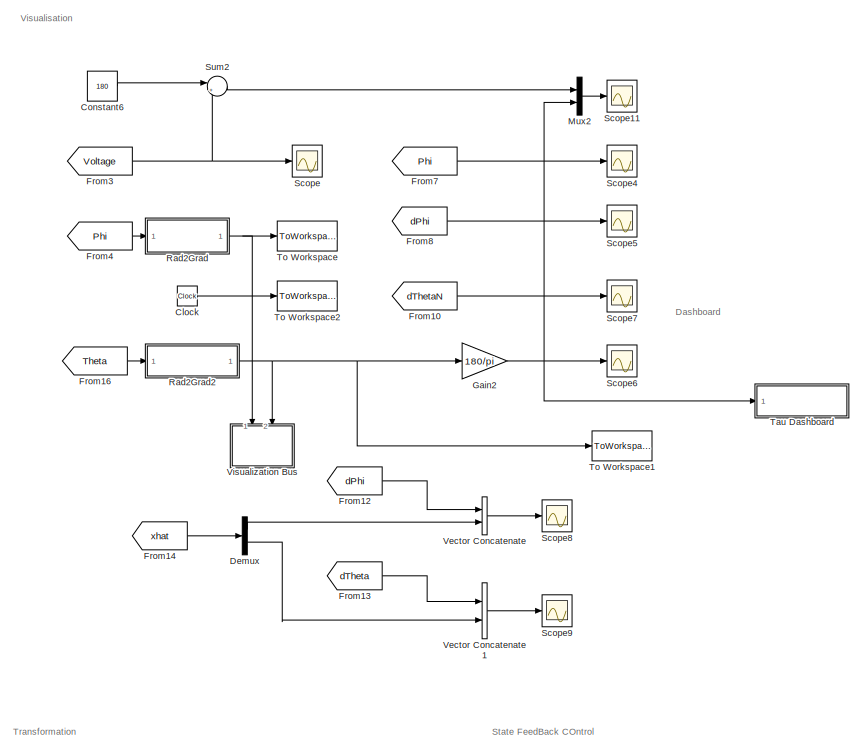
[diagram: root canvas - part 1/4, top center region]
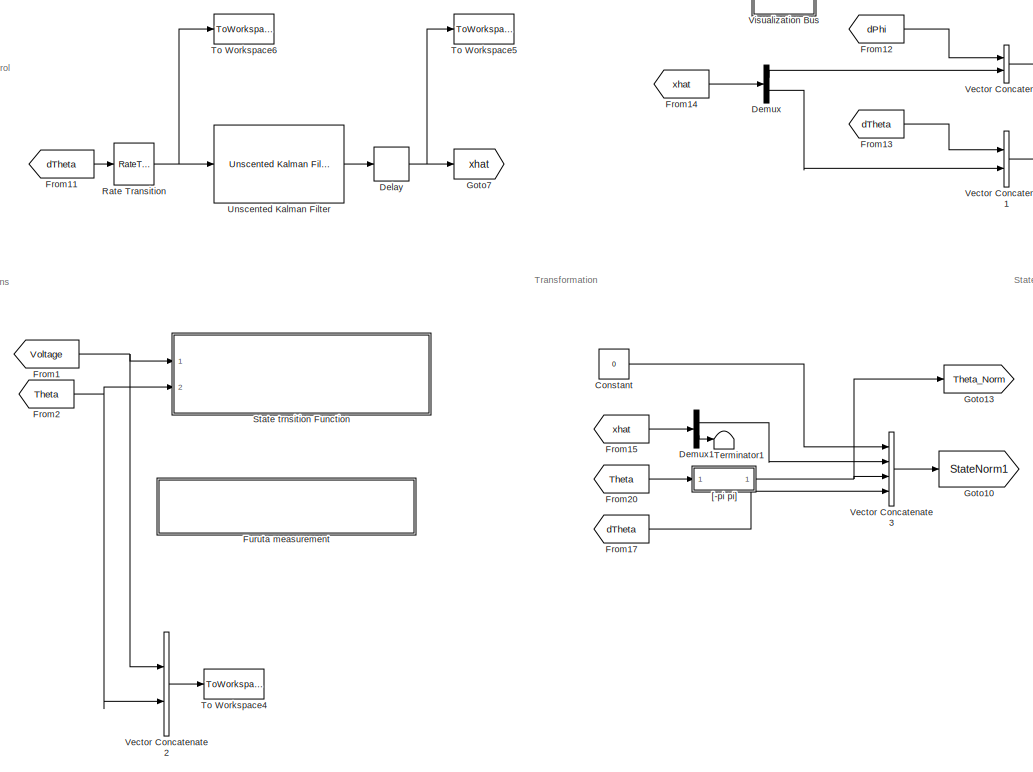
[diagram: root canvas - part 2/4, central region]
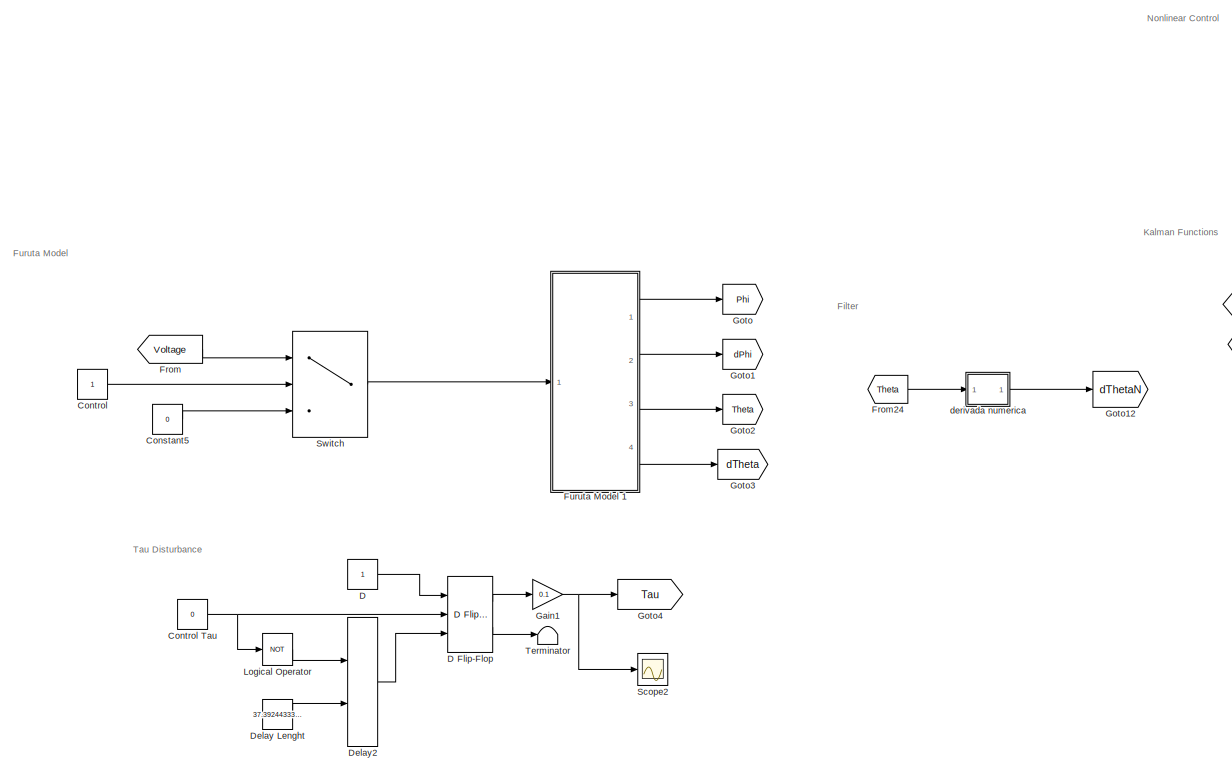
[diagram: root canvas - part 3/4, bottom left region]
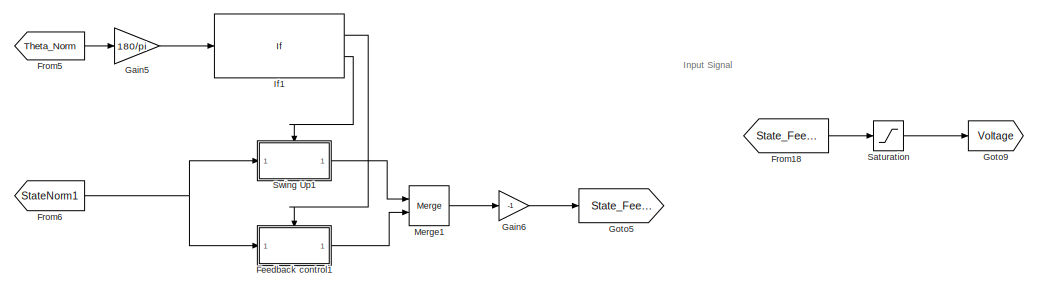
[diagram: root canvas - part 4/4, bottom right region]
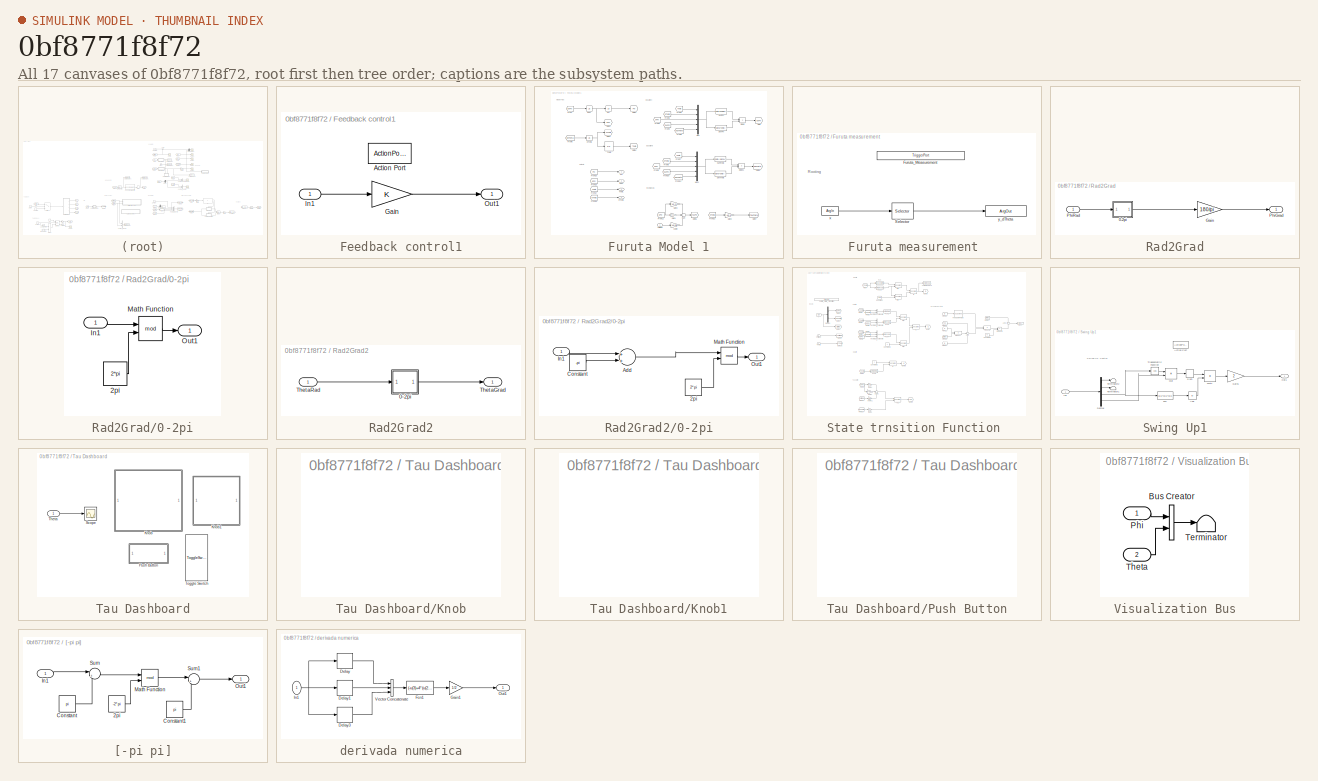
[diagram: thumbnail index - all 17 canvases of the model, root first then tree order]
MODEL slx_0bf8771f8f72
KIND model
CONFIG AbsTol = auto
CONFIG EnableMultiTasking = off
CONFIG FixedStep = Ts
CONFIG MaxStep = auto
CONFIG MinStep = auto
CONFIG PreLoadFcn = %myBusDef
CONFIG RelTol = 1e-3
CONFIG SampleTimeConstraint = Unconstrained
CONFIG Solver = FixedStepAuto
CONFIG SolverName = FixedStepAuto
CONFIG StartFcn = % Full path to the block\n%blk = 'Furuta_Control/Bus Creator';\n\n% Attach the event listener\n%h = add_exec_event_listener(blk, ...\n%         'PostOutputs', @displayBusdata);
CONFIG StartTime = 0.0
CONFIG StopTime = 30
BLOCK [Clock] Clock
BLOCK [Constant] Constant
  Value = 0
BLOCK [Constant] Constant5
  Value = 0
BLOCK [Constant] Constant6
  Value = 180
BLOCK [Constant] Control
BLOCK [Constant] Control Tau 
  Commented = on
  OutDataTypeStr = boolean
  Value = 0
BLOCK [Constant] D
  Commented = on
  OutDataTypeStr = boolean
BLOCK [Reference] D Flip-Flop  REF=simulink_extras/Flip Flops/D Flip-Flop
  Commented = on
  Ports = [3, 2]
  SourceBlock = simulink_extras/Flip Flops/D Flip-Flop
  SourceProductBaseCode = SL
  SourceProductName = Simulink
  SourceType = DFlipFlop
BLOCK [Delay] Delay
  Commented = through
  DelayLength = 1
  InitialCondition = 0
  InputPortMap = u0
  Ports = [1, 1]
BLOCK [Constant] Delay Lenght
  Commented = on
  Value = 37.39244333903
BLOCK [Delay] Delay2
  Commented = on
  DelayLengthSource = Input port
  InputPortMap = u0,p1
  Ports = [2, 1]
BLOCK [Demux] Demux
  DisplayOption = bar
  Outputs = 2
  Ports = [1, 2]
BLOCK [Demux] Demux1
  DisplayOption = bar
  Outputs = 2
  Ports = [1, 2]
BLOCK [SubSystem] Feedback control1
  Ports = [1, 1, 0, 0, 0, 0, 0, 1]
  RequestExecContextInheritance = off
  TreatAsAtomicUnit = on
BLOCK [ActionPort] Feedback control1/Action Port
  ActionType = then
BLOCK [Gain] Feedback control1/Gain
  Gain = K
  Multiplication = Matrix(K*u)
  OutDataTypeStr = double
  ParamDataTypeStr = double
  SaturateOnIntegerOverflow = off
BLOCK [Inport] Feedback control1/In1
  IconDisplay = Port number
BLOCK [Outport] Feedback control1/Out1
  IconDisplay = Port number
BLOCK [From] From
  GotoTag = Voltage
BLOCK [From] From1
  GotoTag = Voltage
BLOCK [From] From10
  GotoTag = dThetaN
BLOCK [From] From11
  GotoTag = dTheta
BLOCK [From] From12
  GotoTag = dPhi
BLOCK [From] From13
  GotoTag = dTheta
BLOCK [From] From14
  GotoTag = xhat
BLOCK [From] From15
  GotoTag = xhat
BLOCK [From] From16
  GotoTag = Theta
BLOCK [From] From17
  GotoTag = dTheta
BLOCK [From] From18
  GotoTag = State_FeedBack
BLOCK [From] From2
  GotoTag = Theta
BLOCK [From] From20
  GotoTag = Theta
BLOCK [From] From24
  GotoTag = Theta
BLOCK [From] From3
  GotoTag = Voltage
BLOCK [From] From4
  GotoTag = Phi
BLOCK [From] From5
  GotoTag = Theta_Norm
BLOCK [From] From6
  GotoTag = StateNorm1
BLOCK [From] From7
  GotoTag = Phi
BLOCK [From] From8
  GotoTag = dPhi
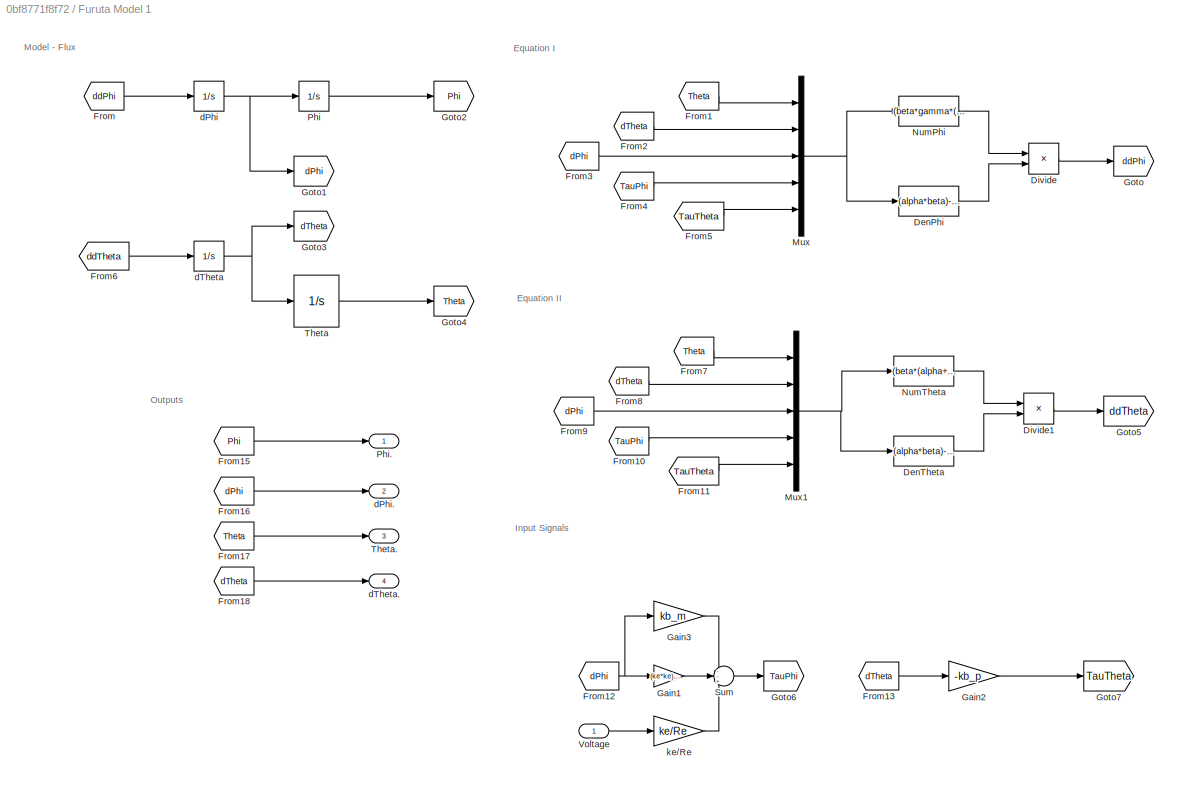
BLOCK [SubSystem] Furuta Model 1
  Ports = [1, 4]
  RequestExecContextInheritance = off
BLOCK [Fcn] Furuta Model 1/DenPhi
  Expr = (alpha*beta)-(gamma*gamma)+((beta*beta+gamma*gamma)*sin(u(1))*sin(u(1)))
BLOCK [Fcn] Furuta Model 1/DenTheta
  Expr = (alpha*beta)-(gamma*gamma)+((beta*beta+gamma*gamma)*sin(u(1))*sin(u(1)))
BLOCK [Product] Furuta Model 1/Divide
  InputSameDT = off
  Inputs = */
  OutDataTypeStr = Inherit: Inherit via internal rule
  Ports = [2, 1]
  RndMeth = Floor
  SaturateOnIntegerOverflow = off
BLOCK [Product] Furuta Model 1/Divide1
  InputSameDT = off
  Inputs = */
  OutDataTypeStr = Inherit: Inherit via internal rule
  Ports = [2, 1]
  RndMeth = Floor
  SaturateOnIntegerOverflow = off
BLOCK [From] Furuta Model 1/From
  GotoTag = ddPhi
BLOCK [From] Furuta Model 1/From1
  GotoTag = Theta
BLOCK [From] Furuta Model 1/From10
  GotoTag = TauPhi
BLOCK [From] Furuta Model 1/From11
  GotoTag = TauTheta
BLOCK [From] Furuta Model 1/From12
  GotoTag = dPhi
BLOCK [From] Furuta Model 1/From13
  GotoTag = dTheta
BLOCK [From] Furuta Model 1/From15
  GotoTag = Phi
BLOCK [From] Furuta Model 1/From16
  GotoTag = dPhi
BLOCK [From] Furuta Model 1/From17
  GotoTag = Theta
BLOCK [From] Furuta Model 1/From18
  GotoTag = dTheta
BLOCK [From] Furuta Model 1/From2
  GotoTag = dTheta
BLOCK [From] Furuta Model 1/From3
  GotoTag = dPhi
BLOCK [From] Furuta Model 1/From4
  GotoTag = TauPhi
BLOCK [From] Furuta Model 1/From5
  GotoTag = TauTheta
BLOCK [From] Furuta Model 1/From6
  GotoTag = ddTheta
BLOCK [From] Furuta Model 1/From7
  GotoTag = Theta
BLOCK [From] Furuta Model 1/From8
  GotoTag = dTheta
BLOCK [From] Furuta Model 1/From9
  GotoTag = dPhi
BLOCK [Gain] Furuta Model 1/Gain1
  Gain = (ke*ke)/Re
  OutDataTypeStr = Inherit: Inherit via internal rule
  ParamDataTypeStr = Inherit: Inherit via internal rule
  SaturateOnIntegerOverflow = off
BLOCK [Gain] Furuta Model 1/Gain2
  Gain = -kb_p
  OutDataTypeStr = Inherit: Inherit via internal rule
  ParamDataTypeStr = Inherit: Inherit via internal rule
  SaturateOnIntegerOverflow = off
BLOCK [Gain] Furuta Model 1/Gain3
  Gain = kb_m
  OutDataTypeStr = Inherit: Inherit via internal rule
  ParamDataTypeStr = Inherit: Inherit via internal rule
  SaturateOnIntegerOverflow = off
BLOCK [Goto] Furuta Model 1/Goto
  GotoTag = ddPhi
BLOCK [Goto] Furuta Model 1/Goto1
  GotoTag = dPhi
BLOCK [Goto] Furuta Model 1/Goto2
  GotoTag = Phi
BLOCK [Goto] Furuta Model 1/Goto3
  GotoTag = dTheta
BLOCK [Goto] Furuta Model 1/Goto4
  GotoTag = Theta
BLOCK [Goto] Furuta Model 1/Goto5
  GotoTag = ddTheta
BLOCK [Goto] Furuta Model 1/Goto6
  GotoTag = TauPhi
BLOCK [Goto] Furuta Model 1/Goto7
  GotoTag = TauTheta
BLOCK [Mux] Furuta Model 1/Mux
  DisplayOption = bar
  Inputs = 5
  Ports = [5, 1]
BLOCK [Mux] Furuta Model 1/Mux1
  DisplayOption = bar
  Inputs = 5
  Ports = [5, 1]
BLOCK [Fcn] Furuta Model 1/NumPhi
  Expr = (beta*gamma*(sin(u(1))*sin(u(1))-1)*sin(u(1))*u(3)*u(3))-(2*beta*beta*cos(u(1))*sin(u(1))*u(3)*u(2))+(beta*gamma*sin(u(1))*u(2)*u(2))-(gamma*sigma*cos(u(1))*sin(u(1)))+(beta*u(4))-(gamma*cos(u(1))*u(5))
BLOCK [Fcn] Furuta Model 1/NumTheta
  Expr = (beta*(alpha+beta*sin(u(1))*sin(u(1)))*cos(u(1))*sin(u(1))*u(3)*u(3))+(2*beta*gamma*(1-sin(u(1))*sin(u(1)))*sin(u(1))*u(3)*u(2))-(gamma*gamma*cos(u(1))*sin(u(1))*u(2)*u(2))+(sigma*(alpha+beta*sin(u(1))*sin(u(1)))*sin(u(1)))-(gamma*cos(u(1))*u(4))+((alpha+beta*sin(u(1))*sin(u(1)))*u(5))
BLOCK [Integrator] Furuta Model 1/Phi
  Ports = [1, 1]
BLOCK [Outport] Furuta Model 1/Phi.
  IconDisplay = Port number
BLOCK [Sum] Furuta Model 1/Sum
  IconShape = round
  InputSameDT = off
  Inputs = --+
  OutDataTypeStr = Inherit: Inherit via internal rule
  Ports = [3, 1]
  SaturateOnIntegerOverflow = off
BLOCK [Integrator] Furuta Model 1/Theta
  InitialCondition = initial_state
  Ports = [1, 1]
BLOCK [Outport] Furuta Model 1/Theta.
  IconDisplay = Port number
  Port = 3
BLOCK [Inport] Furuta Model 1/Voltage 
  IconDisplay = Port number
BLOCK [Integrator] Furuta Model 1/dPhi
  Ports = [1, 1]
BLOCK [Outport] Furuta Model 1/dPhi.
  IconDisplay = Port number
  Port = 2
BLOCK [Integrator] Furuta Model 1/dTheta
  Ports = [1, 1]
BLOCK [Outport] Furuta Model 1/dTheta.
  IconDisplay = Port number
  Port = 4
BLOCK [Gain] Furuta Model 1/ke//Re 
  Gain = ke/Re
  OutDataTypeStr = Inherit: Inherit via internal rule
  ParamDataTypeStr = Inherit: Inherit via internal rule
  SaturateOnIntegerOverflow = off
BLOCK [SubSystem] Furuta measurement 
  Ports = [0, 0, 0, 1]
  RequestExecContextInheritance = off
  TreatAsAtomicUnit = on
BLOCK [TriggerPort] Furuta measurement /Furuta_Measurement
  FunctionName = Furuta_Measurement
  IsSimulinkFunction = on
  Ports = []
  StatesWhenEnabling = held
  TriggerType = function-call
  VariantControl = Variant
BLOCK [Selector] Furuta measurement /Selector
  IndexOptions = Index vector (dialog)
  Indices = 2
  InputPortWidth = 2
  OutputSizes = 1
  Ports = [1, 1]
BLOCK [ArgIn] Furuta measurement /x
  ArgumentName = x
  DisableCoverage = on
  PortDimensions = 2
BLOCK [ArgOut] Furuta measurement /y_dTheta
  ArgumentName = y_dTheta
  DisableCoverage = on
BLOCK [Gain] Gain1
  Commented = on
  Gain = 0.1
  OutDataTypeStr = Inherit: Inherit via internal rule
  ParamDataTypeStr = Inherit: Inherit via internal rule
  SaturateOnIntegerOverflow = off
BLOCK [Gain] Gain2
  Gain = 180/pi
  OutDataTypeStr = Inherit: Inherit via internal rule
  ParamDataTypeStr = Inherit: Inherit via internal rule
  SaturateOnIntegerOverflow = off
BLOCK [Gain] Gain5
  Gain = 180/pi
  OutDataTypeStr = Inherit: Inherit via internal rule
  ParamDataTypeStr = Inherit: Inherit via internal rule
  SaturateOnIntegerOverflow = off
BLOCK [Gain] Gain6
  Gain = -1
  OutDataTypeStr = Inherit: Inherit via internal rule
  ParamDataTypeStr = Inherit: Inherit via internal rule
  SaturateOnIntegerOverflow = off
BLOCK [Goto] Goto
  GotoTag = Phi
BLOCK [Goto] Goto1
  GotoTag = dPhi
BLOCK [Goto] Goto10
  GotoTag = StateNorm1
BLOCK [Goto] Goto12
  GotoTag = dThetaN
BLOCK [Goto] Goto13
  GotoTag = Theta_Norm
BLOCK [Goto] Goto2
  GotoTag = Theta
BLOCK [Goto] Goto3
  GotoTag = dTheta
BLOCK [Goto] Goto4
  Commented = on
  GotoTag = Tau
BLOCK [Goto] Goto5
  GotoTag = State_FeedBack
BLOCK [Goto] Goto7
  GotoTag = xhat
BLOCK [Goto] Goto9
  GotoTag = Voltage
BLOCK [If] If1
  IfExpression = (u1 < 30) & (u1 > -30 )
  Ports = [1, 2]
BLOCK [Logic] Logical Operator
  AllPortsSameDT = off
  Commented = on
  Operator = NOT
  OutDataTypeStr = boolean
  Ports = [1, 1]
BLOCK [Merge] Merge1
  Ports = [2, 1]
BLOCK [Mux] Mux2
  DisplayOption = bar
  Inputs = 2
  Ports = [2, 1]
BLOCK [SubSystem] Rad2Grad
  Ports = [1, 1]
  RequestExecContextInheritance = off
BLOCK [SubSystem] Rad2Grad/0-2pi
  Ports = [1, 1]
  RequestExecContextInheritance = off
BLOCK [Constant] Rad2Grad/0-2pi/2pi
  Value = 2*pi
BLOCK [Inport] Rad2Grad/0-2pi/In1
  IconDisplay = Port number
BLOCK [Math] Rad2Grad/0-2pi/Math Function
  Operator = mod
  Ports = [2, 1]
BLOCK [Outport] Rad2Grad/0-2pi/Out1
  IconDisplay = Port number
BLOCK [Gain] Rad2Grad/Gain
  Commented = through
  Gain = 180/pi
  OutDataTypeStr = Inherit: Inherit via internal rule
  ParamDataTypeStr = Inherit: Inherit via internal rule
  SaturateOnIntegerOverflow = off
BLOCK [Outport] Rad2Grad/PhiGrad
  IconDisplay = Port number
BLOCK [Inport] Rad2Grad/PhiRad
  IconDisplay = Port number
BLOCK [SubSystem] Rad2Grad2
  Ports = [1, 1]
  RequestExecContextInheritance = off
BLOCK [SubSystem] Rad2Grad2/0-2pi
  Ports = [1, 1]
  RequestExecContextInheritance = off
BLOCK [Constant] Rad2Grad2/0-2pi/2pi
  Value = 2*pi
BLOCK [Sum] Rad2Grad2/0-2pi/Add
  InputSameDT = off
  OutDataTypeStr = Inherit: Inherit via internal rule
  Ports = [2, 1]
  SaturateOnIntegerOverflow = off
BLOCK [Constant] Rad2Grad2/0-2pi/Constant
  Value = -pi
BLOCK [Inport] Rad2Grad2/0-2pi/In1
  IconDisplay = Port number
BLOCK [Math] Rad2Grad2/0-2pi/Math Function
  Operator = mod
  Ports = [2, 1]
BLOCK [Outport] Rad2Grad2/0-2pi/Out1
  IconDisplay = Port number
BLOCK [Outport] Rad2Grad2/ThetaGrad
  IconDisplay = Port number
BLOCK [Inport] Rad2Grad2/ThetaRad
  IconDisplay = Port number
BLOCK [RateTransition] Rate Transition
  OutPortSampleTime = Ts
  OutPortSampleTimeOpt = Inherit
BLOCK [Saturate] Saturation
  InputPortMap = u0
  LowerLimit = -6
  Ports = [1, 1]
  UpperLimit = 6
BLOCK [Scope] Scope
  Floating = off
  NumInputPorts = 1
  Ports = [1]
  ScopeSpecificationString = Simulink.scopes.TimeScopeBlockCfg('CurrentConfiguration', extmgr.ConfigurationSet(extmgr.Configuration('Core','General UI',true),extmgr.Configuration('Core','Source UI',true),extmgr.Configuration('Sources','WiredSimulink',true),extmgr.Configuration('Visuals','Time Domain',true,'SerializedDisplays',{struct('MinYLimReal','-7.47008','MaxYLimReal','14.16334','YLabelReal','','MinYLimMag','0.00000','Max...<+1378ch>
BLOCK [Scope] Scope11
  Floating = off
  NumInputPorts = 1
  Ports = [1]
  ScopeSpecificationString = Simulink.scopes.TimeScopeBlockCfg('CurrentConfiguration', extmgr.ConfigurationSet(extmgr.Configuration('Core','General UI',true,'ShowStatusbar',false),extmgr.Configuration('Core','Source UI',true),extmgr.Configuration('Sources','WiredSimulink',true,'DataLoggingVariableName','ScopeData1'),extmgr.Configuration('Visuals','Time Domain',true,'SerializedDisplays',{struct('MinYLimReal','-44.99804','MaxYL...<+1501ch>
BLOCK [Scope] Scope2
  Commented = on
  Floating = off
  NumInputPorts = 1
  Ports = [1]
  ScopeSpecificationString = Simulink.scopes.TimeScopeBlockCfg('CurrentConfiguration', extmgr.ConfigurationSet(extmgr.Configuration('Core','General UI',true),extmgr.Configuration('Core','Source UI',true),extmgr.Configuration('Sources','WiredSimulink',true,'DataLoggingVariableName','ScopeData1'),extmgr.Configuration('Visuals','Time Domain',true,'SerializedDisplays',{struct('MinYLimReal','-1.00000','MaxYLimReal','1.00000','YLab...<+1392ch>
BLOCK [Scope] Scope4
  Floating = off
  NumInputPorts = 1
  Ports = [1]
  ScopeSpecificationString = Simulink.scopes.TimeScopeBlockCfg('CurrentConfiguration', extmgr.ConfigurationSet(extmgr.Configuration('Core','General UI',true),extmgr.Configuration('Core','Source UI',true),extmgr.Configuration('Sources','WiredSimulink',true,'DataLoggingVariableName','ScopeData4'),extmgr.Configuration('Visuals','Time Domain',true,'SerializedDisplays',{struct('MinYLimReal','-11.50271','MaxYLimReal','103.52435','Y...<+1410ch>
BLOCK [Scope] Scope5
  Floating = off
  NumInputPorts = 1
  Ports = [1]
  ScopeSpecificationString = Simulink.scopes.TimeScopeBlockCfg('CurrentConfiguration', extmgr.ConfigurationSet(extmgr.Configuration('Core','General UI',true),extmgr.Configuration('Core','Source UI',true),extmgr.Configuration('Sources','WiredSimulink',true,'DataLoggingVariableName','ScopeData5'),extmgr.Configuration('Visuals','Time Domain',true,'SerializedDisplays',{struct('MinYLimReal','-19.74453','MaxYLimReal','17.49516','YL...<+1433ch>
BLOCK [Scope] Scope6
  Floating = off
  NumInputPorts = 1
  Ports = [1]
  ScopeSpecificationString = Simulink.scopes.TimeScopeBlockCfg('CurrentConfiguration', extmgr.ConfigurationSet(extmgr.Configuration('Core','General UI',true),extmgr.Configuration('Core','Source UI',true),extmgr.Configuration('Sources','WiredSimulink',true,'DataLoggingVariableName','ScopeData6'),extmgr.Configuration('Visuals','Time Domain',true,'SerializedDisplays',{struct('MinYLimReal','-44.99712','MaxYLimReal','404.99306','Y...<+1446ch>
BLOCK [Scope] Scope7
  Floating = off
  NumInputPorts = 1
  Ports = [1]
  ScopeSpecificationString = Simulink.scopes.TimeScopeBlockCfg('CurrentConfiguration', extmgr.ConfigurationSet(extmgr.Configuration('Core','General UI',true),extmgr.Configuration('Core','Source UI',true),extmgr.Configuration('Sources','WiredSimulink',true,'DataLoggingVariableName','ScopeData7'),extmgr.Configuration('Visuals','Time Domain',true,'SerializedDisplays',{struct('MinYLimReal','-239.37714','MaxYLimReal','558.59796','...<+1417ch>
BLOCK [Scope] Scope8
  Floating = off
  NumInputPorts = 1
  Ports = [1]
  ScopeSpecificationString = Simulink.scopes.TimeScopeBlockCfg('CurrentConfiguration', extmgr.ConfigurationSet(extmgr.Configuration('Core','General UI',true),extmgr.Configuration('Core','Source UI',true),extmgr.Configuration('Sources','WiredSimulink',true,'DataLoggingVariableName','ScopeData8'),extmgr.Configuration('Visuals','Time Domain',true,'SerializedDisplays',{struct('MinYLimReal','-21.56289','MaxYLimReal','7.77837','YLa...<+1460ch>
BLOCK [Scope] Scope9
  Floating = off
  NumInputPorts = 1
  Ports = [1]
  ScopeSpecificationString = Simulink.scopes.TimeScopeBlockCfg('CurrentConfiguration', extmgr.ConfigurationSet(extmgr.Configuration('Core','General UI',true),extmgr.Configuration('Core','Source UI',true),extmgr.Configuration('Sources','WiredSimulink',true,'DataLoggingVariableName','ScopeData9'),extmgr.Configuration('Visuals','Time Domain',true,'SerializedDisplays',{struct('MinYLimReal','-25.94545','MaxYLimReal','26.4948','YLa...<+1458ch>
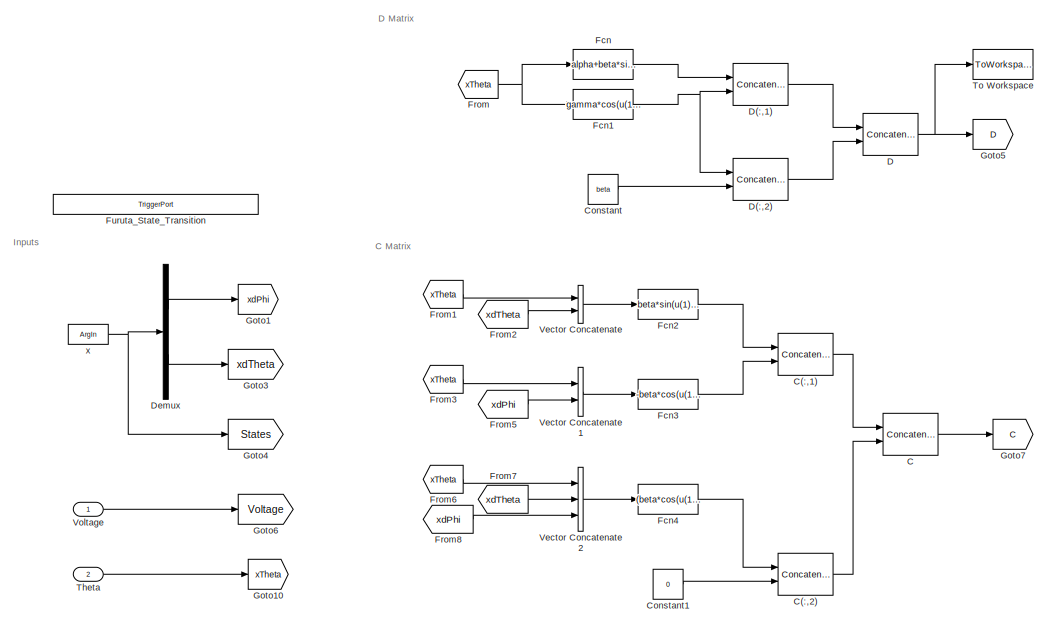
[diagram: State trnsition Function  - part 1/3, top left region]
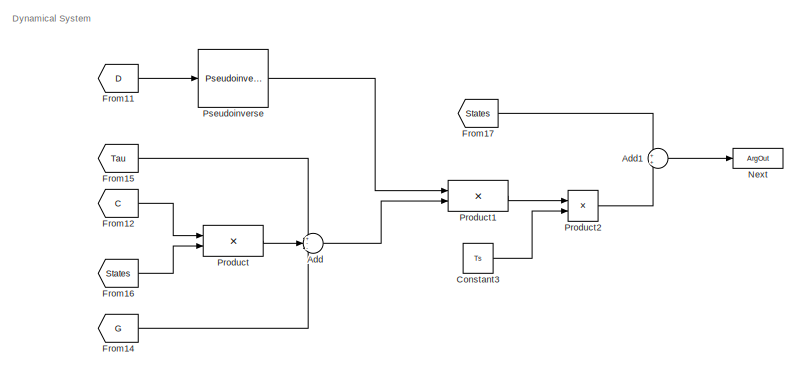
[diagram: State trnsition Function  - part 2/3, middle right region]
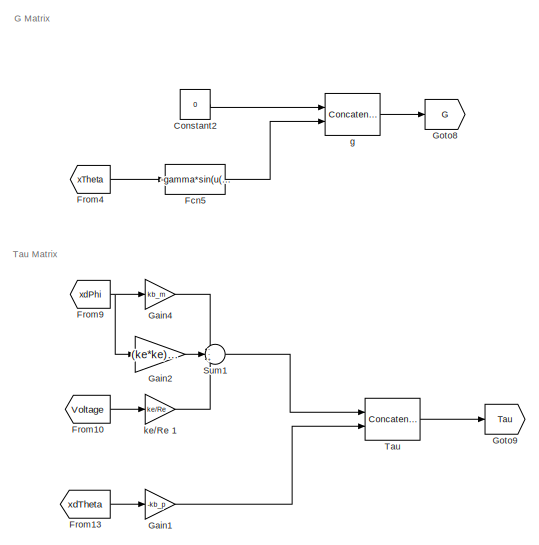
[diagram: State trnsition Function  - part 3/3, bottom center region]
BLOCK [SubSystem] State trnsition Function 
  Ports = [2, 0, 0, 1]
  RequestExecContextInheritance = off
  TreatAsAtomicUnit = on
BLOCK [Sum] State trnsition Function /Add
  IconShape = round
  InputSameDT = off
  Inputs = +--
  OutDataTypeStr = Inherit: Inherit via internal rule
  Ports = [3, 1]
  SaturateOnIntegerOverflow = off
BLOCK [Sum] State trnsition Function /Add1
  IconShape = round
  InputSameDT = off
  OutDataTypeStr = Inherit: Inherit via internal rule
  Ports = [2, 1]
  SaturateOnIntegerOverflow = off
BLOCK [Concatenate] State trnsition Function /C
  ConcatenateDimension = 2
  Mode = Multidimensional array
  Ports = [2, 1]
BLOCK [Concatenate] State trnsition Function /C(:,1)
  ConcatenateDimension = 2
  Ports = [2, 1]
BLOCK [Concatenate] State trnsition Function /C(:,2)
  ConcatenateDimension = 2
  Ports = [2, 1]
BLOCK [Constant] State trnsition Function /Constant
  Value = beta
BLOCK [Constant] State trnsition Function /Constant1
  Value = 0
BLOCK [Constant] State trnsition Function /Constant2
  Value = 0
BLOCK [Constant] State trnsition Function /Constant3
  Value = Ts
BLOCK [Concatenate] State trnsition Function /D
  ConcatenateDimension = 2
  Mode = Multidimensional array
  Ports = [2, 1]
BLOCK [Concatenate] State trnsition Function /D(:,1) 
  ConcatenateDimension = 2
  Ports = [2, 1]
BLOCK [Concatenate] State trnsition Function /D(:,2)
  ConcatenateDimension = 2
  Ports = [2, 1]
BLOCK [Demux] State trnsition Function /Demux
  DisplayOption = bar
  Outputs = 2
  Ports = [1, 2]
BLOCK [Fcn] State trnsition Function /Fcn
  Expr = alpha+beta*sin(u(1))*sin(u(1))
BLOCK [Fcn] State trnsition Function /Fcn1
  Expr = gamma*cos(u(1))
BLOCK [Fcn] State trnsition Function /Fcn2
  Expr = beta*sin(u(1))*cos(u(1))*u(2)
BLOCK [Fcn] State trnsition Function /Fcn3
  Expr = -beta*cos(u(1))*sin(u(1))*u(2)
BLOCK [Fcn] State trnsition Function /Fcn4
  Expr = (beta*cos(u(1))*sin(u(1))*u(3))-(gamma*sin(u(1))*u(2))
BLOCK [Fcn] State trnsition Function /Fcn5
  Expr = -gamma*sin(u(1))
BLOCK [From] State trnsition Function /From
  GotoTag = xTheta
BLOCK [From] State trnsition Function /From1
  GotoTag = xTheta
BLOCK [From] State trnsition Function /From10
  GotoTag = Voltage
BLOCK [From] State trnsition Function /From11
  GotoTag = D
BLOCK [From] State trnsition Function /From12
  GotoTag = C
BLOCK [From] State trnsition Function /From13
  GotoTag = xdTheta
BLOCK [From] State trnsition Function /From14
  GotoTag = G
BLOCK [From] State trnsition Function /From15
  GotoTag = Tau
BLOCK [From] State trnsition Function /From16
  GotoTag = States
BLOCK [From] State trnsition Function /From17
  GotoTag = States
BLOCK [From] State trnsition Function /From2
  GotoTag = xdTheta
BLOCK [From] State trnsition Function /From3
  GotoTag = xTheta
BLOCK [From] State trnsition Function /From4
  GotoTag = xTheta
BLOCK [From] State trnsition Function /From5
  GotoTag = xdPhi
BLOCK [From] State trnsition Function /From6
  GotoTag = xTheta
BLOCK [From] State trnsition Function /From7
  GotoTag = xdTheta
BLOCK [From] State trnsition Function /From8
  GotoTag = xdPhi
BLOCK [From] State trnsition Function /From9
  GotoTag = xdPhi
BLOCK [TriggerPort] State trnsition Function /Furuta_State_Transition
  FunctionName = Furuta_State_Transition
  IsSimulinkFunction = on
  Ports = []
  StatesWhenEnabling = held
  TriggerType = function-call
  VariantControl = Variant
BLOCK [Gain] State trnsition Function /Gain1
  Gain = -kb_p
  OutDataTypeStr = Inherit: Inherit via internal rule
  ParamDataTypeStr = Inherit: Inherit via internal rule
  SaturateOnIntegerOverflow = off
BLOCK [Gain] State trnsition Function /Gain2
  Gain = (ke*ke)/Re
  OutDataTypeStr = Inherit: Inherit via internal rule
  ParamDataTypeStr = Inherit: Inherit via internal rule
  SaturateOnIntegerOverflow = off
BLOCK [Gain] State trnsition Function /Gain4
  Gain = kb_m
  OutDataTypeStr = Inherit: Inherit via internal rule
  ParamDataTypeStr = Inherit: Inherit via internal rule
  SaturateOnIntegerOverflow = off
BLOCK [Goto] State trnsition Function /Goto1
  GotoTag = xdPhi
BLOCK [Goto] State trnsition Function /Goto10
  GotoTag = xTheta
BLOCK [Goto] State trnsition Function /Goto3
  GotoTag = xdTheta
BLOCK [Goto] State trnsition Function /Goto4
  GotoTag = States
BLOCK [Goto] State trnsition Function /Goto5
  GotoTag = D
BLOCK [Goto] State trnsition Function /Goto6
  GotoTag = Voltage
BLOCK [Goto] State trnsition Function /Goto7
  GotoTag = C
BLOCK [Goto] State trnsition Function /Goto8
  GotoTag = G
BLOCK [Goto] State trnsition Function /Goto9
  GotoTag = Tau
BLOCK [ArgOut] State trnsition Function /Next
  ArgumentName = Next
  DisableCoverage = on
  PortDimensions = 2
BLOCK [Product] State trnsition Function /Product
  InputSameDT = off
  Multiplication = Matrix(*)
  OutDataTypeStr = Inherit: Inherit via internal rule
  Ports = [2, 1]
  RndMeth = Floor
  SaturateOnIntegerOverflow = off
BLOCK [Product] State trnsition Function /Product1
  InputSameDT = off
  Multiplication = Matrix(*)
  OutDataTypeStr = Inherit: Inherit via internal rule
  Ports = [2, 1]
  RndMeth = Floor
  SaturateOnIntegerOverflow = off
BLOCK [Product] State trnsition Function /Product2
  InputSameDT = off
  OutDataTypeStr = Inherit: Inherit via internal rule
  Ports = [2, 1]
  RndMeth = Floor
  SaturateOnIntegerOverflow = off
BLOCK [Reference] State trnsition Function /Pseudoinverse  REF=dspinverses/Pseudoinverse
  Ports = [1, 1]
  SourceBlock = dspinverses/Pseudoinverse
  SourceProductBaseCode = DS
  SourceProductName = DSP System Toolbox
  SourceType = Pseudoinverse
BLOCK [Sum] State trnsition Function /Sum1
  IconShape = round
  InputSameDT = off
  Inputs = --+
  OutDataTypeStr = Inherit: Inherit via internal rule
  Ports = [3, 1]
  SaturateOnIntegerOverflow = off
BLOCK [Concatenate] State trnsition Function /Tau
  ConcatenateDimension = 2
  Ports = [2, 1]
BLOCK [Inport] State trnsition Function /Theta 
  IconDisplay = Port number
  Port = 2
BLOCK [ToWorkspace] State trnsition Function /To Workspace
  FixptAsFi = on
  MaxDataPoints = inf
  Ports = [1]
  SampleTime = -1
  Save2DSignal = 3-D array (concatenate along third dimension)
  VariableName = D
BLOCK [Concatenate] State trnsition Function /Vector Concatenate
  Ports = [2, 1]
BLOCK [Concatenate] State trnsition Function /Vector Concatenate1
  Ports = [2, 1]
BLOCK [Concatenate] State trnsition Function /Vector Concatenate2
  NumInputs = 3
  Ports = [3, 1]
BLOCK [Inport] State trnsition Function /Voltage 
  IconDisplay = Port number
BLOCK [Concatenate] State trnsition Function /g
  ConcatenateDimension = 2
  Ports = [2, 1]
BLOCK [Gain] State trnsition Function /ke//Re 1
  Gain = ke/Re
  OutDataTypeStr = Inherit: Inherit via internal rule
  ParamDataTypeStr = Inherit: Inherit via internal rule
  SaturateOnIntegerOverflow = off
BLOCK [ArgIn] State trnsition Function /x
  ArgumentName = x
  DisableCoverage = on
  LockScale = on
  PortDimensions = 2
BLOCK [Sum] Sum2
  IconShape = round
  InputSameDT = off
  Inputs = |++
  OutDataTypeStr = Inherit: Inherit via internal rule
  Ports = [2, 1]
  SaturateOnIntegerOverflow = off
BLOCK [SubSystem] Swing Up1
  Ports = [1, 1, 0, 0, 0, 0, 0, 1]
  RequestExecContextInheritance = off
  TreatAsAtomicUnit = on
BLOCK [Abs] Swing Up1/Abs
  SaturateOnIntegerOverflow = off
BLOCK [ActionPort] Swing Up1/Action Port
  ActionType = else
BLOCK [Demux] Swing Up1/Demux
  DisplayOption = bar
  Ports = [1, 4]
BLOCK [Fcn] Swing Up1/Fcn
  Expr = u(1)*u(1)*u(1)
BLOCK [Gain] Swing Up1/Gain1
  Gain = 2
  OutDataTypeStr = Inherit: Inherit via internal rule
  ParamDataTypeStr = Inherit: Inherit via internal rule
  SaturateOnIntegerOverflow = off
BLOCK [Inport] Swing Up1/In1
  IconDisplay = Port number
BLOCK [Product] Swing Up1/Mut
  InputSameDT = off
  Inputs = **
  OutDataTypeStr = Inherit: Inherit via internal rule
  Ports = [2, 1]
  RndMeth = Floor
  SaturateOnIntegerOverflow = off
BLOCK [Product] Swing Up1/Mut1
  InputSameDT = off
  Inputs = **
  OutDataTypeStr = Inherit: Inherit via internal rule
  Ports = [2, 1]
  RndMeth = Floor
  SaturateOnIntegerOverflow = off
BLOCK [Outport] Swing Up1/Out1
  IconDisplay = Port number
  InitialOutput = 0
BLOCK [Signum] Swing Up1/Sign
BLOCK [Terminator] Swing Up1/Terminator1
BLOCK [Terminator] Swing Up1/Terminator2
BLOCK [Trigonometry] Swing Up1/Trigonometric Function
  Operator = cos
  Ports = [1, 1]
BLOCK [Switch] Switch
  Criteria = u2 > Threshold
  InputSameDT = off
  SaturateOnIntegerOverflow = off
  Threshold = 0.5
BLOCK [SubSystem] Tau Dashboard
  Commented = on
  Ports = [1]
  RequestExecContextInheritance = off
BLOCK [SubSystem] Tau Dashboard/Knob
  DialogController = hmiCreateDDGDialog
  IsWebBlock = on
  MaskHideContents = on
  Ports = []
  RequestExecContextInheritance = off
BLOCK [SubSystem] Tau Dashboard/Knob1
  DialogController = hmiCreateDDGDialog
  IsWebBlock = on
  MaskHideContents = on
  Ports = []
  RequestExecContextInheritance = off
BLOCK [SubSystem] Tau Dashboard/Push Button
  DialogController = hmiCreateDDGDialog
  IsWebBlock = on
  Ports = []
  RequestExecContextInheritance = off
BLOCK [Scope] Tau Dashboard/Scope
  Floating = off
  NumInputPorts = 1
  Ports = [1]
  ScopeSpecificationString = Simulink.scopes.TimeScopeBlockCfg('CurrentConfiguration', extmgr.ConfigurationSet(extmgr.Configuration('Core','General UI',true),extmgr.Configuration('Core','Source UI',true),extmgr.Configuration('Sources','WiredSimulink',true,'DataLoggingVariableName','ScopeData2'),extmgr.Configuration('Visuals','Time Domain',true,'SerializedDisplays',{struct('MinYLimReal','177.97188','MaxYLimReal','182.10814','Y...<+1432ch>
BLOCK [Inport] Tau Dashboard/Theta 
  IconDisplay = Port number
BLOCK [ToggleSwitchBlock] Tau Dashboard/Toggle Switch
  WebBlockId = 843
BLOCK [Terminator] Terminator
  Commented = on
BLOCK [Terminator] Terminator1
BLOCK [ToWorkspace] To Workspace
  FixptAsFi = on
  MaxDataPoints = inf
  Ports = [1]
  SampleTime = -1
  Save2DSignal = 2-D array (concatenate along first dimension)
  VariableName = simPhi
BLOCK [ToWorkspace] To Workspace1
  FixptAsFi = on
  MaxDataPoints = inf
  Ports = [1]
  SampleTime = -1
  Save2DSignal = 2-D array (concatenate along first dimension)
  VariableName = simTheta
BLOCK [ToWorkspace] To Workspace2
  FixptAsFi = on
  MaxDataPoints = inf
  Ports = [1]
  SampleTime = -1
  Save2DSignal = 2-D array (concatenate along first dimension)
  VariableName = simt
BLOCK [ToWorkspace] To Workspace4
  FixptAsFi = on
  MaxDataPoints = inf
  Ports = [1]
  SampleTime = -1
  Save2DSignal = 2-D array (concatenate along first dimension)
  VariableName = input
BLOCK [ToWorkspace] To Workspace5
  FixptAsFi = on
  MaxDataPoints = inf
  Ports = [1]
  SampleTime = -1
  Save2DSignal = 2-D array (concatenate along first dimension)
  VariableName = output
BLOCK [ToWorkspace] To Workspace6
  FixptAsFi = on
  MaxDataPoints = inf
  Ports = [1]
  SampleTime = -1
  Save2DSignal = 2-D array (concatenate along first dimension)
  VariableName = measurement
BLOCK [Reference] Unscented Kalman Filter  REF=sharedTrackingLibrary/Unscented Kalman Filter
  Ports = [1, 1]
  SourceBlock = sharedTrackingLibrary/Unscented Kalman Filter
  SourceProductBaseCode = CT
  SourceProductName = Control System Toolbox
  SourceType = Unscented Kalman Filter
BLOCK [Concatenate] Vector Concatenate
  Ports = [2, 1]
BLOCK [Concatenate] Vector Concatenate1
  Ports = [2, 1]
BLOCK [Concatenate] Vector Concatenate2
  Ports = [2, 1]
BLOCK [Concatenate] Vector Concatenate3
  NumInputs = 4
  Ports = [4, 1]
BLOCK [SubSystem] Visualization Bus
  Commented = on
  Ports = [2]
  RequestExecContextInheritance = off
BLOCK [BusCreator] Visualization Bus/Bus Creator
  DisplayOption = bar
  InheritFromInputs = on
  Inputs = 2
  NonVirtualBus = on
  OutDataTypeStr = Bus: BO
  Ports = [2, 1]
BLOCK [Inport] Visualization Bus/Phi
  IconDisplay = Port number
BLOCK [Terminator] Visualization Bus/Terminator
BLOCK [Inport] Visualization Bus/Theta
  IconDisplay = Port number
  Port = 2
BLOCK [SubSystem] [-pi pi]
  Ports = [1, 1]
  RequestExecContextInheritance = off
BLOCK [Constant] [-pi pi]/2pi
  Value = -2*pi
BLOCK [Constant] [-pi pi]/Constant
  Value = pi
BLOCK [Constant] [-pi pi]/Constant1
  Value = pi
BLOCK [Inport] [-pi pi]/In1
  IconDisplay = Port number
BLOCK [Math] [-pi pi]/Math Function
  Operator = mod
  Ports = [2, 1]
BLOCK [Outport] [-pi pi]/Out1
  IconDisplay = Port number
BLOCK [Sum] [-pi pi]/Sum
  IconShape = round
  InputSameDT = off
  Inputs = |+-
  OutDataTypeStr = Inherit: Inherit via internal rule
  Ports = [2, 1]
  SaturateOnIntegerOverflow = off
BLOCK [Sum] [-pi pi]/Sum1
  IconShape = round
  InputSameDT = off
  Inputs = |++
  OutDataTypeStr = Inherit: Inherit via internal rule
  Ports = [2, 1]
  SaturateOnIntegerOverflow = off
BLOCK [SubSystem] derivada numerica
  Ports = [1, 1]
  RequestExecContextInheritance = off
BLOCK [Delay] derivada numerica/Delay
  InitialCondition = 0
  InputPortMap = u0
  Ports = [1, 1]
  SampleTime = dtDisc
BLOCK [Delay] derivada numerica/Delay1
  DelayLength = 1
  InitialCondition = 0
  InputPortMap = u0
  Ports = [1, 1]
  SampleTime = dtDisc
BLOCK [Delay] derivada numerica/Delay3
  DelayLength = 0
  InitialCondition = 0
  InputPortMap = u0
  Ports = [1, 1]
  SampleTime = dtDisc
BLOCK [Fcn] derivada numerica/Fcn1
  Expr = (-u(3)+4*(u(2))-3*(u(1)))/dtDisc
BLOCK [Gain] derivada numerica/Gain1
  Gain = 1/2
  OutDataTypeStr = Inherit: Inherit via internal rule
  ParamDataTypeStr = Inherit: Inherit via internal rule
  SaturateOnIntegerOverflow = off
BLOCK [Inport] derivada numerica/In1
  IconDisplay = Port number
BLOCK [Outport] derivada numerica/Out1
  IconDisplay = Port number
BLOCK [Concatenate] derivada numerica/Vector Concatenate
  NumInputs = 3
  Ports = [3, 1]
ANNOTATION (root): Dashboard
ANNOTATION (root): Filter
ANNOTATION (root): Furuta Model
ANNOTATION (root): Input Signal
ANNOTATION (root): Kalman Functions
ANNOTATION (root): Nonlinear Control
ANNOTATION (root): State FeedBack COntrol
ANNOTATION (root): Tau Disturbance
ANNOTATION (root): Transformation
ANNOTATION (root): Visualisation
ANNOTATION Furuta Model 1: Equation I
ANNOTATION Furuta Model 1: Equation II
ANNOTATION Furuta Model 1: Input Signals
ANNOTATION Furuta Model 1: Model - Flux
ANNOTATION Furuta Model 1: Outputs
ANNOTATION Furuta measurement : Rooting
ANNOTATION State trnsition Function : C Matrix
ANNOTATION State trnsition Function : D Matrix
ANNOTATION State trnsition Function : Dynamical System
ANNOTATION State trnsition Function : G Matrix
ANNOTATION State trnsition Function : Inputs
ANNOTATION State trnsition Function : Tau Matrix
ANNOTATION Swing Up1: Swing-UP Control
LINE Clock:1 -> To Workspace2:1
LINE Constant5:1 -> Switch:3
LINE Constant6:1 -> Sum2:1
LINE Constant:1 -> Vector Concatenate3:1
NET Control Tau :1 -> D Flip-Flop:2, Logical Operator:1
LINE Control:1 -> Switch:2
LINE D Flip-Flop:1 -> Gain1:1
LINE D Flip-Flop:2 -> Terminator:1
LINE D:1 -> D Flip-Flop:1
LINE Delay Lenght:1 -> Delay2:2
LINE Delay2:1 -> D Flip-Flop:3
NET Delay:1 -> Goto7:1, To Workspace5:1
LINE Demux1:1 -> Vector Concatenate3:2
LINE Demux1:2 -> Terminator1:1
LINE Demux:1 -> Vector Concatenate:2
LINE Demux:2 -> Vector Concatenate1:2
LINE Feedback control1/Gain:1 -> Feedback control1/Out1:1
LINE Feedback control1/In1:1 -> Feedback control1/Gain:1
LINE Feedback control1:1 -> Merge1:2
LINE From10:1 -> Scope7:1
LINE From11:1 -> Rate Transition:1
LINE From12:1 -> Vector Concatenate:1
LINE From13:1 -> Vector Concatenate1:1
LINE From14:1 -> Demux:1
LINE From15:1 -> Demux1:1
LINE From16:1 -> Rad2Grad2:1
LINE From17:1 -> Vector Concatenate3:4
LINE From18:1 -> Saturation:1
NET From1:1 -> State trnsition Function :1, Vector Concatenate2:1
LINE From20:1 -> [-pi pi]:1
LINE From24:1 -> derivada numerica:1
NET From2:1 -> State trnsition Function :2, Vector Concatenate2:2
NET From3:1 -> Scope:1, Sum2:2
LINE From4:1 -> Rad2Grad:1
LINE From5:1 -> Gain5:1
NET From6:1 -> Feedback control1:1, Swing Up1:1
LINE From7:1 -> Scope4:1
LINE From8:1 -> Scope5:1
LINE From:1 -> Switch:1
LINE Furuta Model 1/DenPhi:1 -> Furuta Model 1/Divide:2
LINE Furuta Model 1/DenTheta:1 -> Furuta Model 1/Divide1:2
LINE Furuta Model 1/Divide1:1 -> Furuta Model 1/Goto5:1
LINE Furuta Model 1/Divide:1 -> Furuta Model 1/Goto:1
LINE Furuta Model 1/From10:1 -> Furuta Model 1/Mux1:4
LINE Furuta Model 1/From11:1 -> Furuta Model 1/Mux1:5
NET Furuta Model 1/From12:1 -> Furuta Model 1/Gain1:1, Furuta Model 1/Gain3:1
LINE Furuta Model 1/From13:1 -> Furuta Model 1/Gain2:1
LINE Furuta Model 1/From15:1 -> Furuta Model 1/Phi.:1
LINE Furuta Model 1/From16:1 -> Furuta Model 1/dPhi.:1
LINE Furuta Model 1/From17:1 -> Furuta Model 1/Theta.:1
LINE Furuta Model 1/From18:1 -> Furuta Model 1/dTheta.:1
LINE Furuta Model 1/From1:1 -> Furuta Model 1/Mux:1
LINE Furuta Model 1/From2:1 -> Furuta Model 1/Mux:2
LINE Furuta Model 1/From3:1 -> Furuta Model 1/Mux:3
LINE Furuta Model 1/From4:1 -> Furuta Model 1/Mux:4
LINE Furuta Model 1/From5:1 -> Furuta Model 1/Mux:5
LINE Furuta Model 1/From6:1 -> Furuta Model 1/dTheta:1
LINE Furuta Model 1/From7:1 -> Furuta Model 1/Mux1:1
LINE Furuta Model 1/From8:1 -> Furuta Model 1/Mux1:2
LINE Furuta Model 1/From9:1 -> Furuta Model 1/Mux1:3
LINE Furuta Model 1/From:1 -> Furuta Model 1/dPhi:1
LINE Furuta Model 1/Gain1:1 -> Furuta Model 1/Sum:2
LINE Furuta Model 1/Gain2:1 -> Furuta Model 1/Goto7:1
LINE Furuta Model 1/Gain3:1 -> Furuta Model 1/Sum:1
NET Furuta Model 1/Mux1:1 -> Furuta Model 1/DenTheta:1, Furuta Model 1/NumTheta:1
NET Furuta Model 1/Mux:1 -> Furuta Model 1/DenPhi:1, Furuta Model 1/NumPhi:1
LINE Furuta Model 1/NumPhi:1 -> Furuta Model 1/Divide:1
LINE Furuta Model 1/NumTheta:1 -> Furuta Model 1/Divide1:1
LINE Furuta Model 1/Phi:1 -> Furuta Model 1/Goto2:1
LINE Furuta Model 1/Sum:1 -> Furuta Model 1/Goto6:1
LINE Furuta Model 1/Theta:1 -> Furuta Model 1/Goto4:1
LINE Furuta Model 1/Voltage :1 -> Furuta Model 1/ke//Re :1
NET Furuta Model 1/dPhi:1 -> Furuta Model 1/Goto1:1, Furuta Model 1/Phi:1
NET Furuta Model 1/dTheta:1 -> Furuta Model 1/Goto3:1, Furuta Model 1/Theta:1
LINE Furuta Model 1/ke//Re :1 -> Furuta Model 1/Sum:3
LINE Furuta Model 1:1 -> Goto:1
LINE Furuta Model 1:2 -> Goto1:1
LINE Furuta Model 1:3 -> Goto2:1
LINE Furuta Model 1:4 -> Goto3:1
LINE Furuta measurement /Selector:1 -> Furuta measurement /y_dTheta:1
LINE Furuta measurement /x:1 -> Furuta measurement /Selector:1
NET Gain1:1 -> Goto4:1, Scope2:1
NET Gain2:1 -> Mux2:2, Scope6:1, Tau Dashboard:1
LINE Gain5:1 -> If1:1
LINE Gain6:1 -> Goto5:1
LINE If1:1 -> Feedback control1:ifaction
LINE If1:2 -> Swing Up1:ifaction
LINE Logical Operator:1 -> Delay2:1
LINE Merge1:1 -> Gain6:1
LINE Mux2:1 -> Scope11:1
LINE Rad2Grad/0-2pi/2pi:1 -> Rad2Grad/0-2pi/Math Function:2
LINE Rad2Grad/0-2pi/In1:1 -> Rad2Grad/0-2pi/Math Function:1
LINE Rad2Grad/0-2pi/Math Function:1 -> Rad2Grad/0-2pi/Out1:1
LINE Rad2Grad/0-2pi:1 -> Rad2Grad/Gain:1
LINE Rad2Grad/Gain:1 -> Rad2Grad/PhiGrad:1
LINE Rad2Grad/PhiRad:1 -> Rad2Grad/0-2pi:1
LINE Rad2Grad2/0-2pi/2pi:1 -> Rad2Grad2/0-2pi/Math Function:2
LINE Rad2Grad2/0-2pi/Add:1 -> Rad2Grad2/0-2pi/Math Function:1
LINE Rad2Grad2/0-2pi/Constant:1 -> Rad2Grad2/0-2pi/Add:2
LINE Rad2Grad2/0-2pi/In1:1 -> Rad2Grad2/0-2pi/Add:1
LINE Rad2Grad2/0-2pi/Math Function:1 -> Rad2Grad2/0-2pi/Out1:1
LINE Rad2Grad2/0-2pi:1 -> Rad2Grad2/ThetaGrad:1
LINE Rad2Grad2/ThetaRad:1 -> Rad2Grad2/0-2pi:1
NET Rad2Grad2:1 -> Gain2:1, To Workspace1:1, Visualization Bus:2
NET Rad2Grad:1 -> To Workspace:1, Visualization Bus:1
NET Rate Transition:1 -> To Workspace6:1, Unscented Kalman Filter:1
LINE Saturation:1 -> Goto9:1
LINE State trnsition Function /Add1:1 -> State trnsition Function /Next:1
LINE State trnsition Function /Add:1 -> State trnsition Function /Product1:2
LINE State trnsition Function /C(:,1):1 -> State trnsition Function /C:1
LINE State trnsition Function /C(:,2):1 -> State trnsition Function /C:2
LINE State trnsition Function /C:1 -> State trnsition Function /Goto7:1
LINE State trnsition Function /Constant1:1 -> State trnsition Function /C(:,2):2
LINE State trnsition Function /Constant2:1 -> State trnsition Function /g:1
LINE State trnsition Function /Constant3:1 -> State trnsition Function /Product2:2
LINE State trnsition Function /Constant:1 -> State trnsition Function /D(:,2):2
LINE State trnsition Function /D(:,1) :1 -> State trnsition Function /D:1
LINE State trnsition Function /D(:,2):1 -> State trnsition Function /D:2
NET State trnsition Function /D:1 -> State trnsition Function /Goto5:1, State trnsition Function /To Workspace:1
LINE State trnsition Function /Demux:1 -> State trnsition Function /Goto1:1
LINE State trnsition Function /Demux:2 -> State trnsition Function /Goto3:1
NET State trnsition Function /Fcn1:1 -> State trnsition Function /D(:,1) :2, State trnsition Function /D(:,2):1
LINE State trnsition Function /Fcn2:1 -> State trnsition Function /C(:,1):1
LINE State trnsition Function /Fcn3:1 -> State trnsition Function /C(:,1):2
LINE State trnsition Function /Fcn4:1 -> State trnsition Function /C(:,2):1
LINE State trnsition Function /Fcn5:1 -> State trnsition Function /g:2
LINE State trnsition Function /Fcn:1 -> State trnsition Function /D(:,1) :1
LINE State trnsition Function /From10:1 -> State trnsition Function /ke//Re 1:1
LINE State trnsition Function /From11:1 -> State trnsition Function /Pseudoinverse:1
LINE State trnsition Function /From12:1 -> State trnsition Function /Product:1
LINE State trnsition Function /From13:1 -> State trnsition Function /Gain1:1
LINE State trnsition Function /From14:1 -> State trnsition Function /Add:3
LINE State trnsition Function /From15:1 -> State trnsition Function /Add:1
LINE State trnsition Function /From16:1 -> State trnsition Function /Product:2
LINE State trnsition Function /From17:1 -> State trnsition Function /Add1:1
LINE State trnsition Function /From1:1 -> State trnsition Function /Vector Concatenate:1
LINE State trnsition Function /From2:1 -> State trnsition Function /Vector Concatenate:2
LINE State trnsition Function /From3:1 -> State trnsition Function /Vector Concatenate1:1
LINE State trnsition Function /From4:1 -> State trnsition Function /Fcn5:1
LINE State trnsition Function /From5:1 -> State trnsition Function /Vector Concatenate1:2
LINE State trnsition Function /From6:1 -> State trnsition Function /Vector Concatenate2:1
LINE State trnsition Function /From7:1 -> State trnsition Function /Vector Concatenate2:2
LINE State trnsition Function /From8:1 -> State trnsition Function /Vector Concatenate2:3
NET State trnsition Function /From9:1 -> State trnsition Function /Gain2:1, State trnsition Function /Gain4:1
NET State trnsition Function /From:1 -> State trnsition Function /Fcn1:1, State trnsition Function /Fcn:1
LINE State trnsition Function /Gain1:1 -> State trnsition Function /Tau:2
LINE State trnsition Function /Gain2:1 -> State trnsition Function /Sum1:2
LINE State trnsition Function /Gain4:1 -> State trnsition Function /Sum1:1
LINE State trnsition Function /Product1:1 -> State trnsition Function /Product2:1
LINE State trnsition Function /Product2:1 -> State trnsition Function /Add1:2
LINE State trnsition Function /Product:1 -> State trnsition Function /Add:2
LINE State trnsition Function /Pseudoinverse:1 -> State trnsition Function /Product1:1
LINE State trnsition Function /Sum1:1 -> State trnsition Function /Tau:1
LINE State trnsition Function /Tau:1 -> State trnsition Function /Goto9:1
LINE State trnsition Function /Theta :1 -> State trnsition Function /Goto10:1
LINE State trnsition Function /Vector Concatenate1:1 -> State trnsition Function /Fcn3:1
LINE State trnsition Function /Vector Concatenate2:1 -> State trnsition Function /Fcn4:1
LINE State trnsition Function /Vector Concatenate:1 -> State trnsition Function /Fcn2:1
LINE State trnsition Function /Voltage :1 -> State trnsition Function /Goto6:1
LINE State trnsition Function /g:1 -> State trnsition Function /Goto8:1
LINE State trnsition Function /ke//Re 1:1 -> State trnsition Function /Sum1:3
NET State trnsition Function /x:1 -> State trnsition Function /Demux:1, State trnsition Function /Goto4:1
LINE Sum2:1 -> Mux2:1
LINE Swing Up1/Abs:1 -> Swing Up1/Mut1:2
LINE Swing Up1/Demux:1 -> Swing Up1/Terminator2:1
LINE Swing Up1/Demux:2 -> Swing Up1/Terminator1:1
NET Swing Up1/Demux:3 -> Swing Up1/Fcn:1, Swing Up1/Trigonometric Function:1
LINE Swing Up1/Demux:4 -> Swing Up1/Mut:2
LINE Swing Up1/Fcn:1 -> Swing Up1/Abs:1
LINE Swing Up1/Gain1:1 -> Swing Up1/Out1:1
LINE Swing Up1/In1:1 -> Swing Up1/Demux:1
LINE Swing Up1/Mut1:1 -> Swing Up1/Gain1:1
LINE Swing Up1/Mut:1 -> Swing Up1/Sign:1
LINE Swing Up1/Sign:1 -> Swing Up1/Mut1:1
LINE Swing Up1/Trigonometric Function:1 -> Swing Up1/Mut:1
LINE Swing Up1:1 -> Merge1:1
LINE Switch:1 -> Furuta Model 1:1
LINE Tau Dashboard/Theta :1 -> Tau Dashboard/Scope:1
LINE Unscented Kalman Filter:1 -> Delay:1
LINE Vector Concatenate1:1 -> Scope9:1
LINE Vector Concatenate2:1 -> To Workspace4:1
LINE Vector Concatenate3:1 -> Goto10:1
LINE Vector Concatenate:1 -> Scope8:1
LINE Visualization Bus/Bus Creator:1 -> Visualization Bus/Terminator:1
LINE Visualization Bus/Phi:1 -> Visualization Bus/Bus Creator:1
LINE Visualization Bus/Theta:1 -> Visualization Bus/Bus Creator:2
LINE [-pi pi]/2pi:1 -> [-pi pi]/Math Function:2
LINE [-pi pi]/Constant1:1 -> [-pi pi]/Sum1:2
LINE [-pi pi]/Constant:1 -> [-pi pi]/Sum:2
LINE [-pi pi]/In1:1 -> [-pi pi]/Sum:1
LINE [-pi pi]/Math Function:1 -> [-pi pi]/Sum1:1
LINE [-pi pi]/Sum1:1 -> [-pi pi]/Out1:1
LINE [-pi pi]/Sum:1 -> [-pi pi]/Math Function:1
NET [-pi pi]:1 -> Goto13:1, Vector Concatenate3:3
LINE derivada numerica/Delay1:1 -> derivada numerica/Vector Concatenate:2
LINE derivada numerica/Delay3:1 -> derivada numerica/Vector Concatenate:3
LINE derivada numerica/Delay:1 -> derivada numerica/Vector Concatenate:1
LINE derivada numerica/Fcn1:1 -> derivada numerica/Gain1:1
LINE derivada numerica/Gain1:1 -> derivada numerica/Out1:1
NET derivada numerica/In1:1 -> derivada numerica/Delay1:1, derivada numerica/Delay3:1, derivada numerica/Delay:1
LINE derivada numerica/Vector Concatenate:1 -> derivada numerica/Fcn1:1
LINE derivada numerica:1 -> Goto12:1
note: NET lines group one-source signal fan-out (src -> all destinations, sorted); 1:1 wires keep LINE
